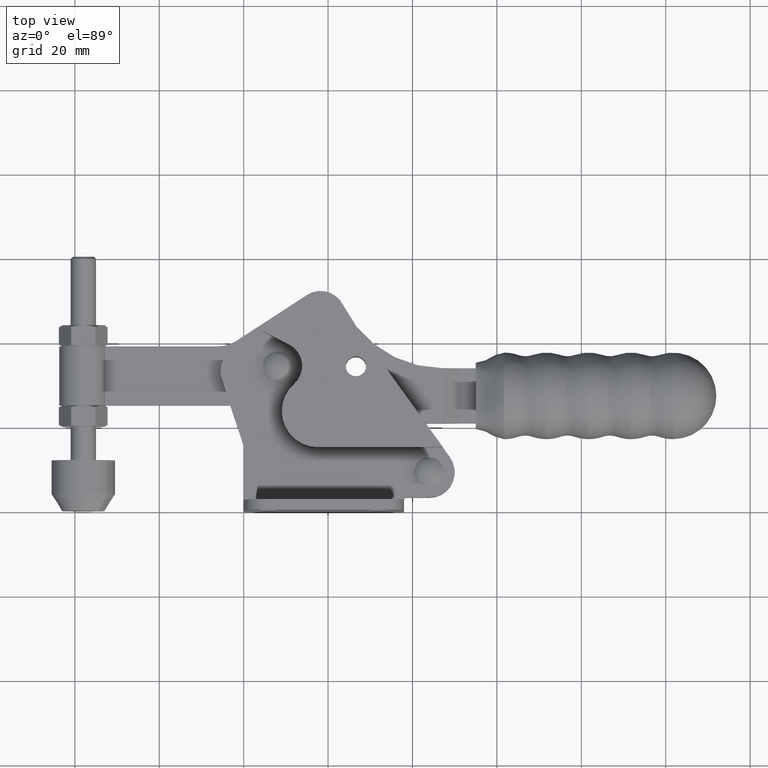
[diagram: clean part render]
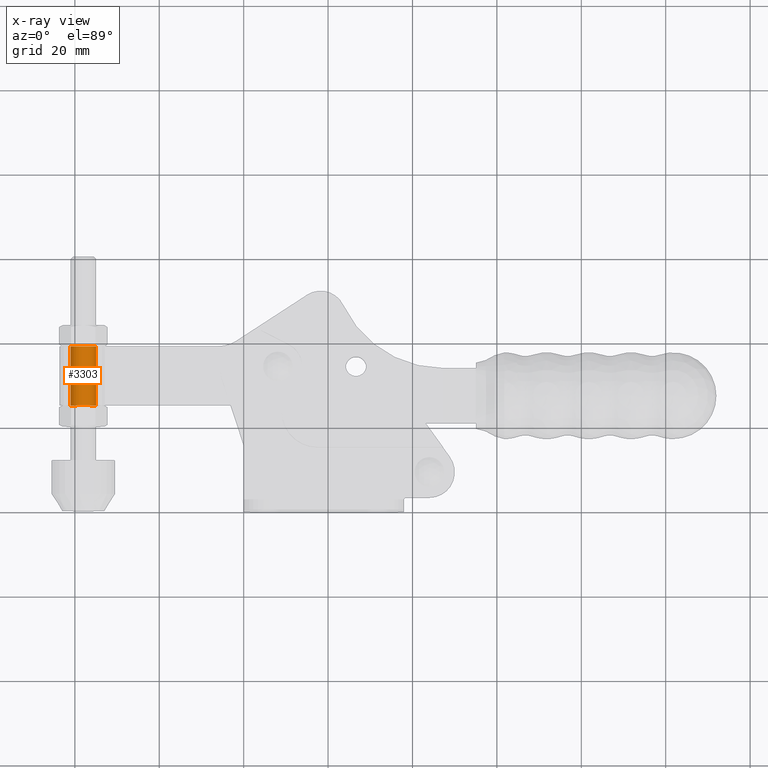
[diagram: x-ray — body ghosted, one internal face saturated and labeled with its STEP entity id]
A machine part, top view, then the same camera in x-ray: the body is ghosted and one INTERNAL B-rep face — a face not visible from any outside direction — is saturated and labeled: STEP entity #3303.
In plain terms, the highlighted cylindrical surface (edge-blend (fillet) strip) has radius 3 mm, axis along (-0, -1, -0).
Its self-contained STEP definition (entity closure, byte-faithful):
#69 = DIRECTION ( 'NONE',  ( -1.262177448353618900E-029, -1.000000000000000000, -5.423418723394449200E-031 ) ) ;
#304 = EDGE_CURVE ( 'NONE', #7118, #8703, #357, .T. ) ;
#357 = CIRCLE ( 'NONE', #1280, 2.999999999948431500 ) ;
#521 = CARTESIAN_POINT ( 'NONE',  ( -40.99999999994845700, 38.99999999999999300, 9.375225788885900400E-014 ) ) ;
#714 = CARTESIAN_POINT ( 'NONE',  ( -38.00000000000002800, 24.99999999999999300, 9.321833039543020200E-014 ) ) ;
#1074 = ORIENTED_EDGE ( 'NONE', *, *, #5848, .F. ) ;
#1280 = AXIS2_PLACEMENT_3D ( 'NONE', #7914, #2995, #10204 ) ;
#1699 = EDGE_CURVE ( 'NONE', #8703, #8549, #3837, .T. ) ;
#2281 = EDGE_LOOP ( 'NONE', ( #10421, #6408, #4250, #1074 ) ) ;
#2620 = VECTOR ( 'NONE', #8407, 1000.000000000000000 ) ;
#2689 = CARTESIAN_POINT ( 'NONE',  ( -35.00000000005159300, 60.25000000000000000, 9.305179694173931800E-014 ) ) ;
#2812 = CARTESIAN_POINT ( 'NONE',  ( -35.00000000005159300, 38.99999999999999300, 9.305179694173930600E-014 ) ) ;
#2995 = DIRECTION ( 'NONE',  ( 0.0000000000000000000, -1.000000000000000000, -0.0000000000000000000 ) ) ;
#3303 = ADVANCED_FACE ( 'NONE', ( #5008 ), #6912, .T. ) ;
#3362 = EDGE_CURVE ( 'NONE', #6896, #8549, #8811, .T. ) ;
#3837 = LINE ( 'NONE', #9033, #10149 ) ;
#4250 = ORIENTED_EDGE ( 'NONE', *, *, #3362, .F. ) ;
#4805 = LINE ( 'NONE', #2689, #2620 ) ;
#5008 = FACE_OUTER_BOUND ( 'NONE', #2281, .T. ) ;
#5088 = CARTESIAN_POINT ( 'NONE',  ( -35.00000000005159300, 24.99999999999999300, 9.305179694173930600E-014 ) ) ;
#5848 = EDGE_CURVE ( 'NONE', #7118, #6896, #4805, .T. ) ;
#6408 = ORIENTED_EDGE ( 'NONE', *, *, #1699, .T. ) ;
#6843 = CARTESIAN_POINT ( 'NONE',  ( -40.99999999994845700, 24.99999999999999300, 9.375225788885900400E-014 ) ) ;
#6896 = VERTEX_POINT ( 'NONE', #5088 ) ;
#6912 = CYLINDRICAL_SURFACE ( 'NONE', #8605, 2.999999999948432800 ) ;
#6984 = AXIS2_PLACEMENT_3D ( 'NONE', #714, #10012, #7575 ) ;
#7102 = CARTESIAN_POINT ( 'NONE',  ( -38.00000000000002800, 60.25000000000000000, 9.321833039543022700E-014 ) ) ;
#7118 = VERTEX_POINT ( 'NONE', #2812 ) ;
#7575 = DIRECTION ( 'NONE',  ( 0.0000000000000000000, 0.0000000000000000000, -1.000000000000000000 ) ) ;
#7721 = DIRECTION ( 'NONE',  ( 1.000000000000000000, 0.0000000000000000000, -5.551115123125679800E-017 ) ) ;
#7914 = CARTESIAN_POINT ( 'NONE',  ( -38.00000000000002800, 38.99999999999999300, 9.321833039543021400E-014 ) ) ;
#8407 = DIRECTION ( 'NONE',  ( -1.262177448353618900E-029, -1.000000000000000000, -5.423418723394449200E-031 ) ) ;
#8549 = VERTEX_POINT ( 'NONE', #6843 ) ;
#8605 = AXIS2_PLACEMENT_3D ( 'NONE', #7102, #10280, #7721 ) ;
#8703 = VERTEX_POINT ( 'NONE', #521 ) ;
#8811 = CIRCLE ( 'NONE', #6984, 2.999999999948431500 ) ;
#9033 = CARTESIAN_POINT ( 'NONE',  ( -40.99999999994845700, 60.25000000000000000, 9.375225788885903000E-014 ) ) ;
#10012 = DIRECTION ( 'NONE',  ( 0.0000000000000000000, -1.000000000000000000, -0.0000000000000000000 ) ) ;
#10149 = VECTOR ( 'NONE', #69, 1000.000000000000000 ) ;
#10204 = DIRECTION ( 'NONE',  ( 0.0000000000000000000, 0.0000000000000000000, -1.000000000000000000 ) ) ;
#10280 = DIRECTION ( 'NONE',  ( -1.262177448353618900E-029, -1.000000000000000000, -5.423418723394449200E-031 ) ) ;
#10421 = ORIENTED_EDGE ( 'NONE', *, *, #304, .T. ) ;